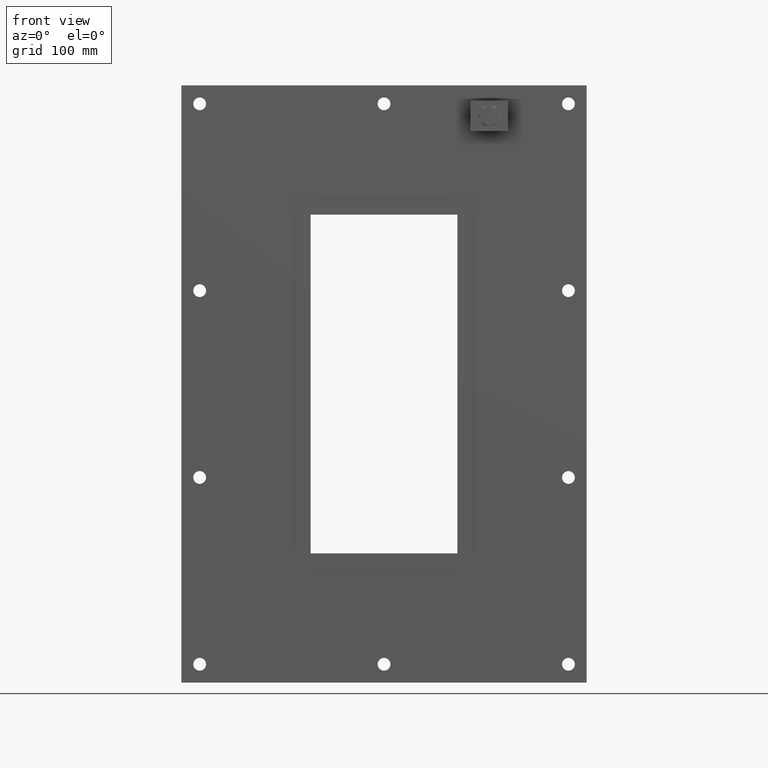
[diagram: clean part render]
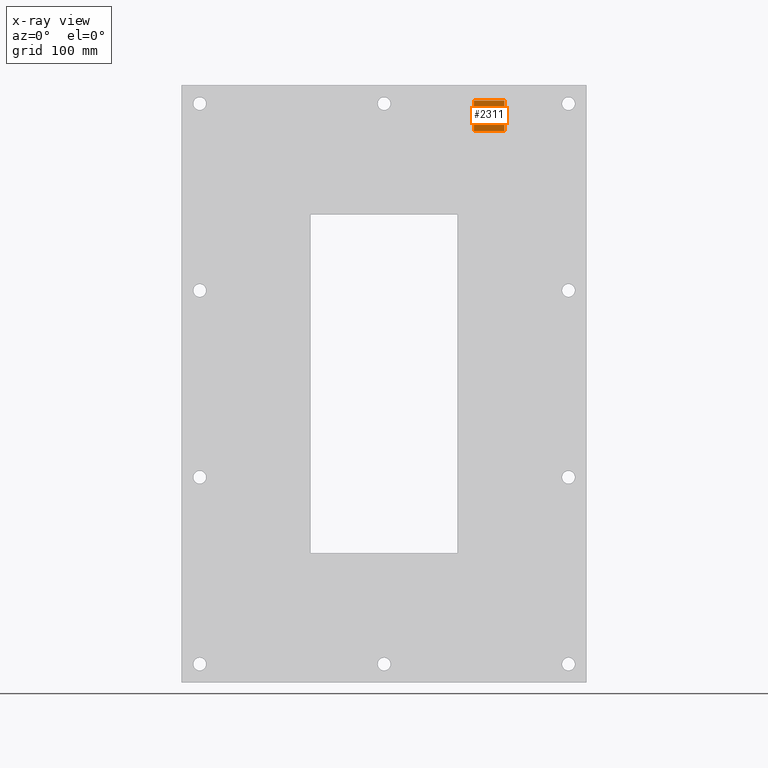
[diagram: x-ray — body ghosted, one internal face saturated and labeled with its STEP entity id]
A machine part, front view, then the same camera in x-ray: the body is ghosted and one INTERNAL B-rep face — a face not visible from any outside direction — is saturated and labeled: STEP entity #2311.
In plain terms, the highlighted planar face has unit normal (0, 1, 0).
Its self-contained STEP definition (entity closure, byte-faithful):
#2166=CARTESIAN_POINT('',(73.75,0.0,207.5));
#2167=VERTEX_POINT('',#2166);
#2168=CARTESIAN_POINT('',(73.75,0.0,232.5));
#2169=VERTEX_POINT('',#2168);
#2170=CARTESIAN_POINT('',(73.75,0.0,207.5));
#2171=DIRECTION('',(0.0,0.0,1.0));
#2172=VECTOR('',#2171,25.0);
#2173=LINE('',#2170,#2172);
#2174=EDGE_CURVE('',#2167,#2169,#2173,.T.);
#2206=CARTESIAN_POINT('',(98.75,0.0,232.5));
#2207=VERTEX_POINT('',#2206);
#2208=CARTESIAN_POINT('',(73.75,0.0,232.5));
#2209=DIRECTION('',(1.0,0.0,0.0));
#2210=VECTOR('',#2209,25.0);
#2211=LINE('',#2208,#2210);
#2212=EDGE_CURVE('',#2169,#2207,#2211,.T.);
#2237=CARTESIAN_POINT('',(98.75,0.0,207.5));
#2238=VERTEX_POINT('',#2237);
#2239=CARTESIAN_POINT('',(98.75,0.0,232.5));
#2240=DIRECTION('',(0.0,0.0,-1.0));
#2241=VECTOR('',#2240,25.0);
#2242=LINE('',#2239,#2241);
#2243=EDGE_CURVE('',#2207,#2238,#2242,.T.);
#2268=CARTESIAN_POINT('',(98.75,0.0,207.5));
#2269=DIRECTION('',(-1.0,0.0,0.0));
#2270=VECTOR('',#2269,25.0);
#2271=LINE('',#2268,#2270);
#2272=EDGE_CURVE('',#2238,#2167,#2271,.T.);
#2300=CARTESIAN_POINT('',(86.25,0.0,219.99999999999997));
#2301=DIRECTION('',(0.0,1.0,0.0));
#2302=DIRECTION('',(0.0,0.0,1.0));
#2303=AXIS2_PLACEMENT_3D('',#2300,#2301,#2302);
#2304=PLANE('',#2303);
#2305=ORIENTED_EDGE('',*,*,#2272,.T.);
#2306=ORIENTED_EDGE('',*,*,#2174,.T.);
#2307=ORIENTED_EDGE('',*,*,#2212,.T.);
#2308=ORIENTED_EDGE('',*,*,#2243,.T.);
#2309=EDGE_LOOP('',(#2305,#2306,#2307,#2308));
#2310=FACE_OUTER_BOUND('',#2309,.T.);
#2311=ADVANCED_FACE('',(#2310),#2304,.T.);